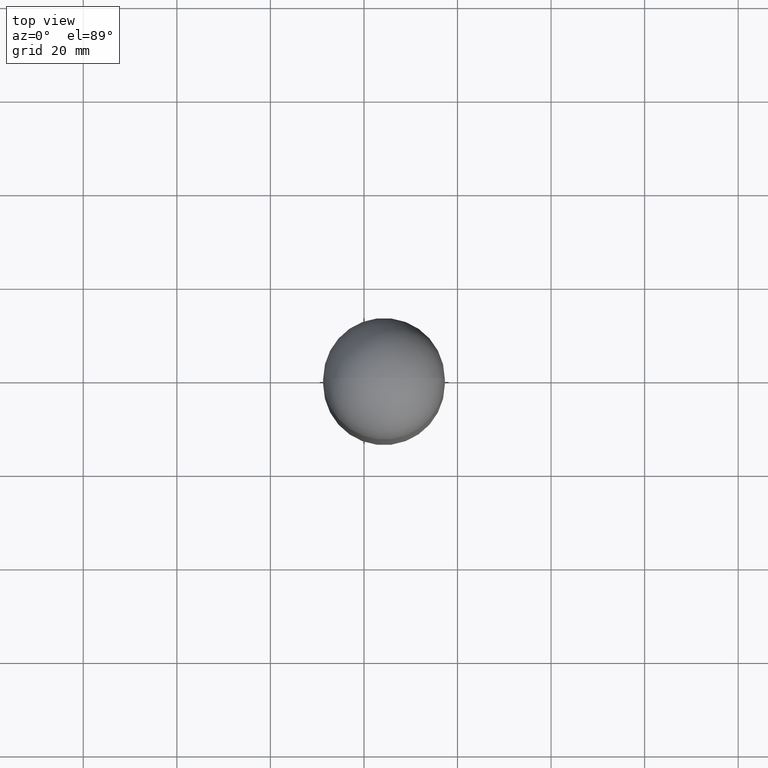
[diagram: clean part render]
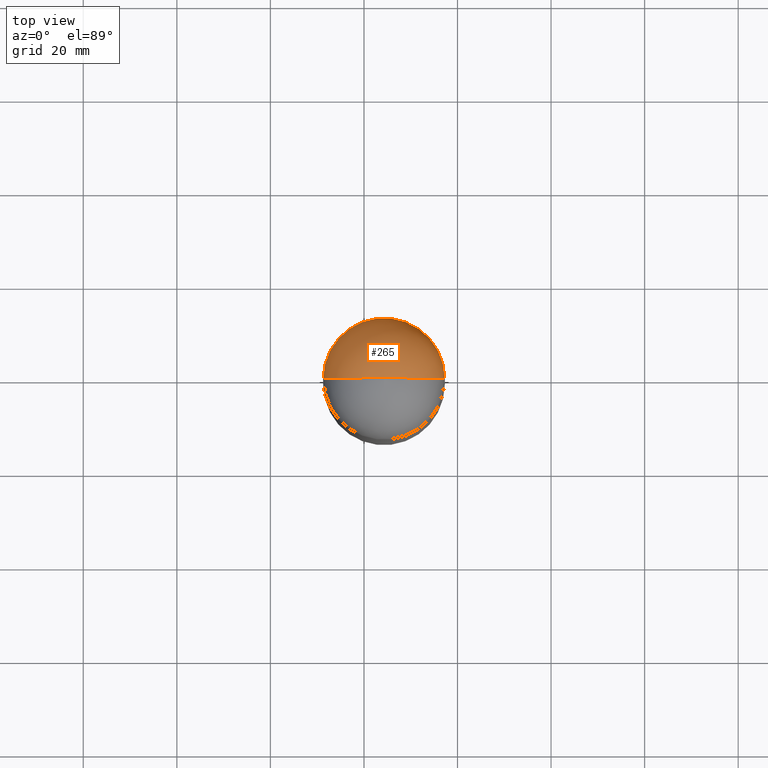
[diagram: same view with one face highlighted and labeled with its STEP entity id]
A machine part, top view. The second image highlights one B-rep face of the part: STEP entity #265.
In plain terms, the highlighted spherical surface has radius 13 mm.
Its self-contained STEP definition (entity closure, byte-faithful):
#209=CARTESIAN_POINT('',(-8.716946060098081,-1.613904443833868,139.0));
#210=VERTEX_POINT('',#209);
#226=CARTESIAN_POINT('',(17.283053939901912,-1.613904443833868,139.0));
#227=VERTEX_POINT('',#226);
#244=CARTESIAN_POINT('',(4.283053939901916,-1.613904443833869,139.0));
#245=DIRECTION('',(0.0,0.0,1.0));
#246=DIRECTION('',(1.0,0.0,0.0));
#247=AXIS2_PLACEMENT_3D('',#244,#245,#246);
#248=SPHERICAL_SURFACE('',#247,13.0);
#249=CARTESIAN_POINT('',(4.283053939901916,-1.613904443833869,139.0));
#250=DIRECTION('',(0.0,-1.0,0.0));
#251=DIRECTION('',(0.0,0.0,1.0));
#252=AXIS2_PLACEMENT_3D('',#249,#250,#251);
#253=CIRCLE('',#252,13.0);
#254=EDGE_CURVE('',#227,#210,#253,.T.);
#255=ORIENTED_EDGE('',*,*,#254,.F.);
#256=CARTESIAN_POINT('',(4.283053939901916,-1.613904443833869,139.0));
#257=DIRECTION('',(0.0,0.0,1.0));
#258=DIRECTION('',(-1.0,0.0,0.0));
#259=AXIS2_PLACEMENT_3D('',#256,#257,#258);
#260=CIRCLE('',#259,12.999999999999998);
#261=EDGE_CURVE('',#227,#210,#260,.T.);
#262=ORIENTED_EDGE('',*,*,#261,.T.);
#263=EDGE_LOOP('',(#255,#262));
#264=FACE_OUTER_BOUND('',#263,.T.);
#265=ADVANCED_FACE('',(#264),#248,.T.);